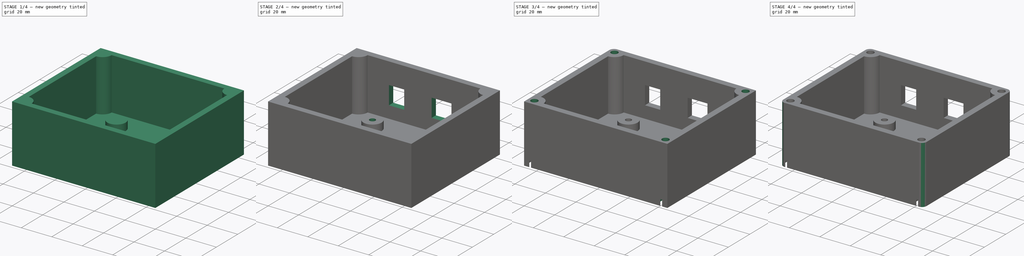
[diagram: build sequence overview — one tinted view per stage of 4, left to right]
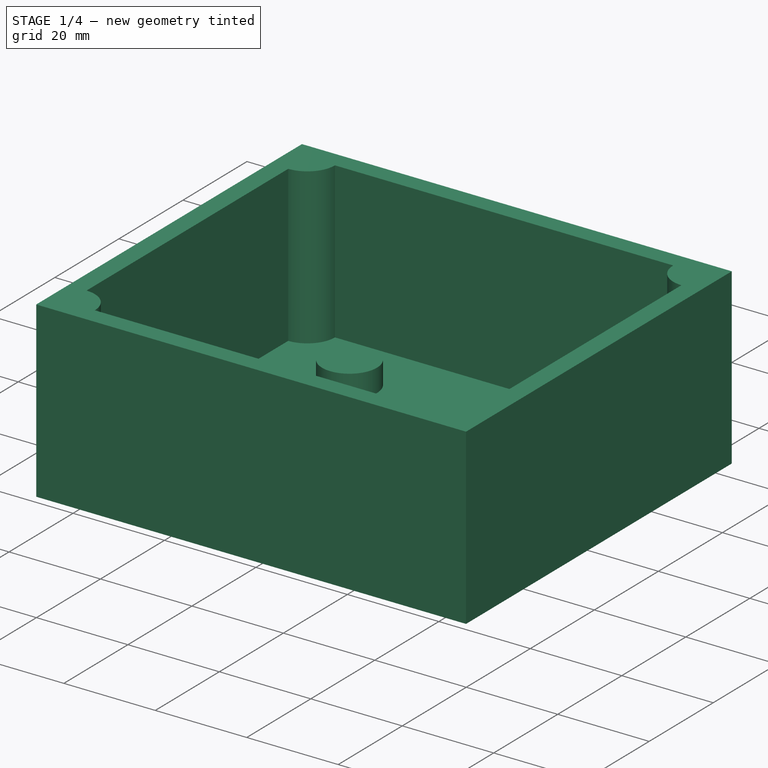
[diagram: stage 1 of 4 — iso view after this stage's code; geometry added in this stage tinted green]
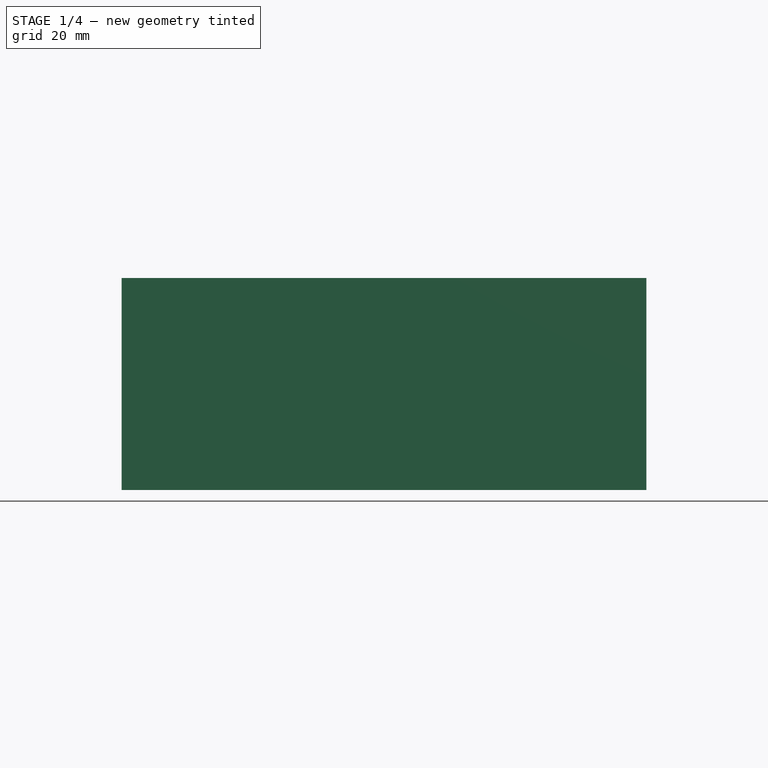
[diagram: stage 1 of 4 — front view after this stage's code; geometry added in this stage tinted green]
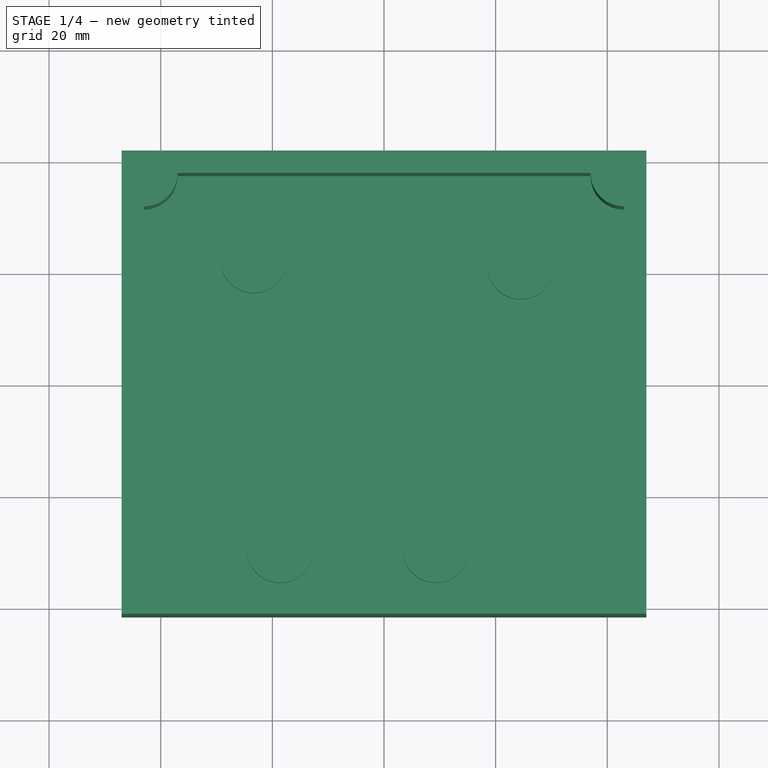
[diagram: stage 1 of 4 — top view after this stage's code; geometry added in this stage tinted green]
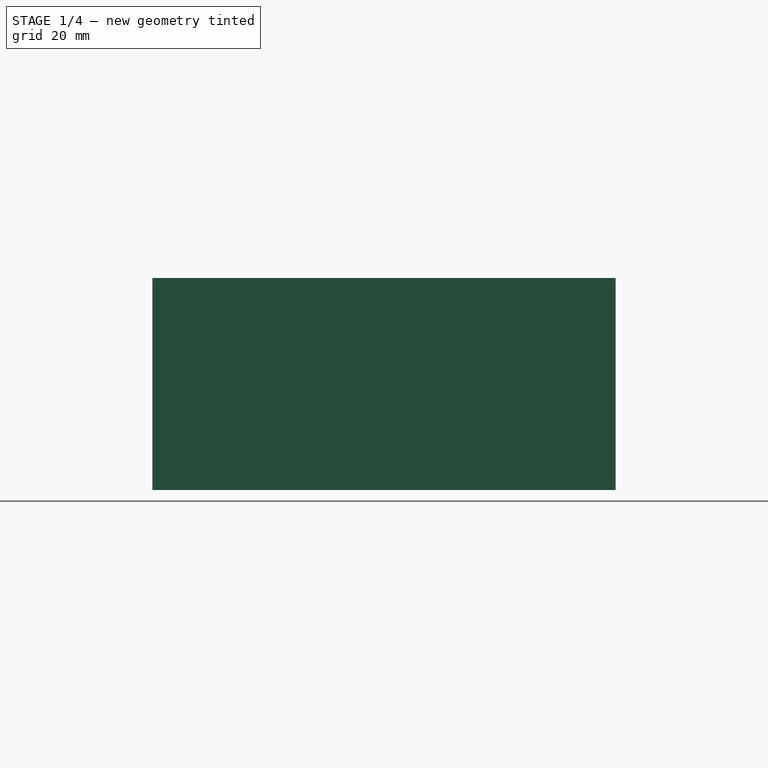
[diagram: stage 1 of 4 — right view after this stage's code; geometry added in this stage tinted green]
FCSTD DOCUMENT  (FreeCAD 0.19R)
Label: lamp_case
License: All rights reserved
LicenseURL: http://en.wikipedia.org/wiki/All_rights_reserved
objects: Sketcher::SketchObject×8, PartDesign::Pocket×6, PartDesign::Fillet×4, PartDesign::Pad×2, PartDesign::Body×1
note: 33 computed .brp shape members not serialized (recipe doc carries the construction recipe); baked Part::Feature solids carry a one-line shape summary decoded from their .brp

FEATURE [Sketcher::SketchObject] Sketch
  FullyConstrained = true
  MapMode = 5
  Support = -> [XY_Plane]
  sketch-geometry (4):
    g0: LineSegment StartX=-47 StartY=41.5 StartZ=0 EndX=47 EndY=41.5 EndZ=0
    g1: LineSegment StartX=47 StartY=41.5 StartZ=0 EndX=47 EndY=-41.5 EndZ=0
    g2: LineSegment StartX=47 StartY=-41.5 StartZ=0 EndX=-47 EndY=-41.5 EndZ=0
    g3: LineSegment StartX=-47 StartY=-41.5 StartZ=0 EndX=-47 EndY=41.5 EndZ=0
  constraints (10):
    c: Coincident(g0,g1)
    c: Coincident(g1,g2)
    c: Coincident(g2,g3)
    c: Coincident(g3,g0)
    c: Horizontal(g0)
    c: Vertical(g3)
    c: DistanceX(g0,g0) = 94
    c: DistanceY(g1,g0) = 83
    c: Symmetric(g1,g2,g-2)
    c: Symmetric(g0,g1,g-1)
FEATURE [PartDesign::Pad] Pad
  Direction = (1,1,1)
  Length = 38
  Length2 = 100
  Profile = -> Sketch
  Type = 0
FEATURE [Sketcher::SketchObject] Sketch001
  FullyConstrained = true
  MapMode = 5
  Placement = pos=(0,0,38) rot=(0,0,1;0rad)
  Support = -> [Pad]
  sketch-geometry (8):
    g0: LineSegment StartX=-37 StartY=37.5 StartZ=0 EndX=37 EndY=37.5 EndZ=0
    g1: LineSegment StartX=43 StartY=31.5 StartZ=0 EndX=43 EndY=-31.5 EndZ=0
    g2: LineSegment StartX=37 StartY=-37.5 StartZ=0 EndX=-37 EndY=-37.5 EndZ=0
    g3: LineSegment StartX=-43 StartY=-31.5 StartZ=0 EndX=-43 EndY=31.5 EndZ=0
    g4: ArcOfCircle CenterX=-43 CenterY=37.5 CenterZ=0 NormalX=0 NormalY=0 NormalZ=1 AngleXU=0 Radius=6 StartAngle=4.71239 EndAngle=6.28319
    g5: ArcOfCircle CenterX=43 CenterY=37.5 CenterZ=0 NormalX=0 NormalY=0 NormalZ=1 AngleXU=0 Radius=6 StartAngle=3.14159 EndAngle=4.71239
    g6: ArcOfCircle CenterX=43 CenterY=-37.5 CenterZ=0 NormalX=0 NormalY=0 NormalZ=1 AngleXU=0 Radius=6 StartAngle=1.5708 EndAngle=3.14159
    g7: ArcOfCircle CenterX=-43 CenterY=-37.5 CenterZ=0 NormalX=0 NormalY=0 NormalZ=1 AngleXU=0 Radius=6 StartAngle=0 EndAngle=1.5708
  constraints (24):
    c: Horizontal(g2)
    c: Vertical(g1)
    c: Coincident(g4,g3)
    c: Coincident(g4,g0)
    c: Coincident(g5,g1)
    c: Coincident(g6,g1)
    c: Coincident(g7,g3)
    c: Coincident(g7,g2)
    c: DistanceX(g7,g6) = 86
    c: Symmetric(g7,g6,g-2)
    c: Vertical(g3)
    c: Horizontal(g0)
    c: Symmetric(g5,g4,g-2)
    c: Equal(g5,g4)
    c: Radius(g6) = 6
    c: Symmetric(g3,g1,g-2)
    c: Coincident(g5,g0)
    c: DistanceY(g2,g0) = 75
    c: Symmetric(g0,g6,g-1)
    c: Radius(g5) = 6
    c: DistanceY(g5,g0) = 0
    c: DistanceX(g1,g5) = 0
    c: Coincident(g6,g2)
    c: DistanceY(g2,g6) = 0
FEATURE [PartDesign::Pocket] Pocket
  BaseFeature = -> Pad
  Length = 34
  Length2 = 100
  Profile = -> Sketch001
  Type = 0
FEATURE [Sketcher::SketchObject] Sketch002
  ExternalGeometry = -> [Pocket]
  FullyConstrained = true
  MapMode = 5
  Placement = pos=(0,0,4) rot=(0,0,1;0rad)
  Support = -> [Pocket]
  sketch-geometry (4):
    g0: Circle CenterX=-23.3 CenterY=22.5 CenterZ=0 NormalX=0 NormalY=0 NormalZ=1 AngleXU=0 Radius=6
    g1: Circle CenterX=24.5 CenterY=21.4 CenterZ=0 NormalX=0 NormalY=0 NormalZ=1 AngleXU=0 Radius=6
    g2: Circle CenterX=-18.6 CenterY=-29.4 CenterZ=0 NormalX=0 NormalY=0 NormalZ=1 AngleXU=0 Radius=6
    g3: Circle CenterX=9.3 CenterY=-29.4 CenterZ=0 NormalX=0 NormalY=0 NormalZ=1 AngleXU=0 Radius=6
  constraints (12):
    c: DistanceY(g0,g-3) = 15
    c: DistanceY(g1,g-3) = 16.1
    c: DistanceX(g1,g-3) = 12.5
    c: DistanceX(g0,g1) = 47.8
    c: DistanceX(g3,g1) = 15.2
    c: DistanceX(g0,g2) = 4.7
    c: DistanceY(g2,g0) = 51.9
    c: DistanceY(g3,g1) = 50.8
    c: Equal(g0,g2)
    c: Equal(g2,g3)
    c: Equal(g3,g1)
    c: Diameter(g1) = 12
FEATURE [PartDesign::Pad] Pad001
  BaseFeature = -> Pocket
  Direction = (1,1,1)
  Length = 5
  Length2 = 100
  Profile = -> Sketch002
  Type = 0
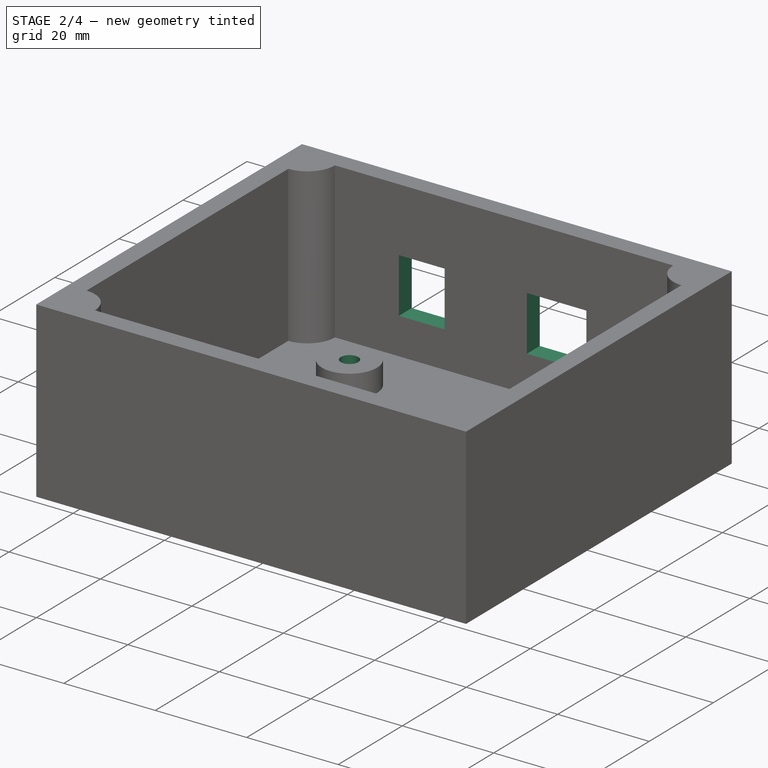
[diagram: stage 2 of 4 — iso view after this stage's code; geometry added in this stage tinted green]
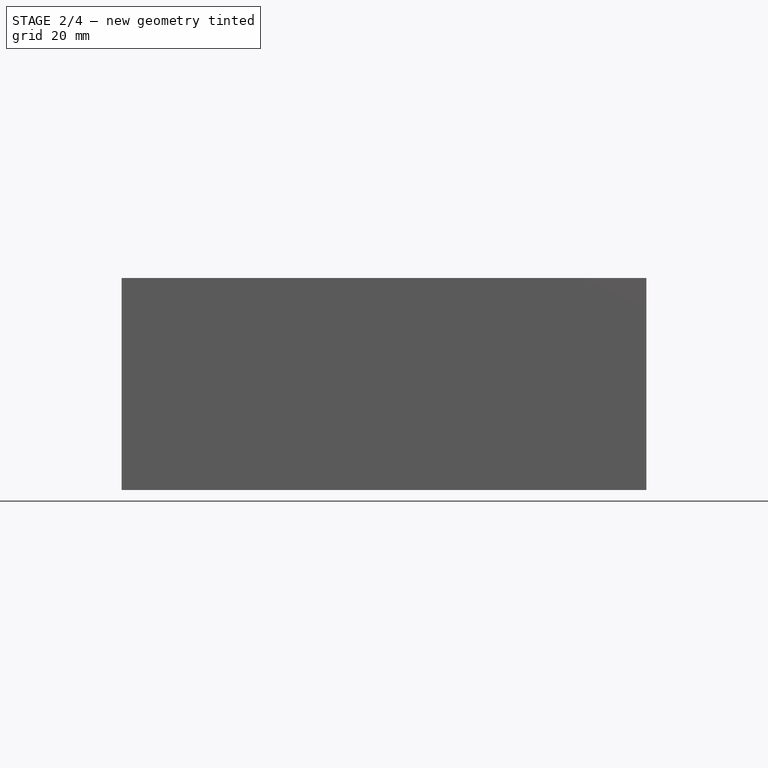
[diagram: stage 2 of 4 — front view after this stage's code; geometry added in this stage tinted green]
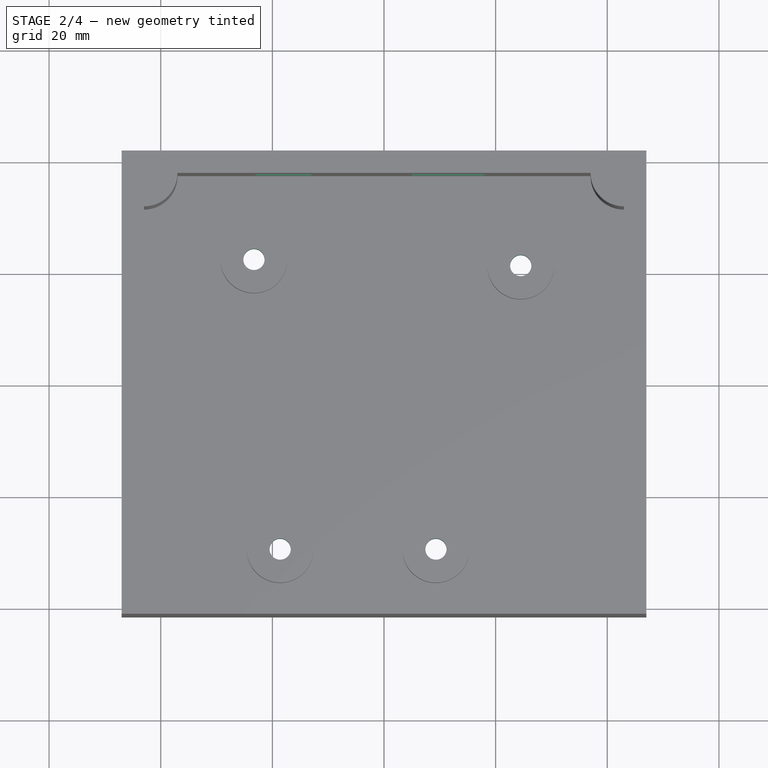
[diagram: stage 2 of 4 — top view after this stage's code; geometry added in this stage tinted green]
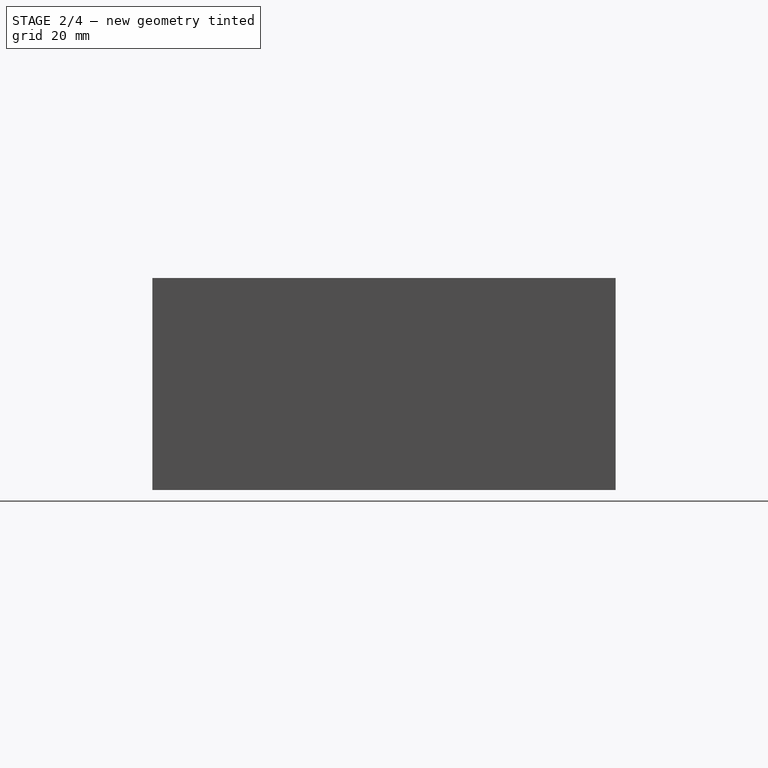
[diagram: stage 2 of 4 — right view after this stage's code; geometry added in this stage tinted green]
FEATURE [Sketcher::SketchObject] Sketch004
  FullyConstrained = true
  MapMode = 5
  Placement = pos=(0,41.5,0) rot=(0,0.707107,0.707107;3.14159rad)
  sketch-geometry (8):
    g0: LineSegment StartX=-18 StartY=24 StartZ=0 EndX=-5 EndY=24 EndZ=0
    g1: LineSegment StartX=-5 StartY=24 StartZ=0 EndX=-5 EndY=12 EndZ=0
    g2: LineSegment StartX=-5 StartY=12 StartZ=0 EndX=-18 EndY=12 EndZ=0
    g3: LineSegment StartX=-18 StartY=12 StartZ=0 EndX=-18 EndY=24 EndZ=0
    g4: LineSegment StartX=13 StartY=24 StartZ=0 EndX=23 EndY=24 EndZ=0
    g5: LineSegment StartX=23 StartY=24 StartZ=0 EndX=23 EndY=12 EndZ=0
    g6: LineSegment StartX=23 StartY=12 StartZ=0 EndX=13 EndY=12 EndZ=0
    g7: LineSegment StartX=13 StartY=12 StartZ=0 EndX=13 EndY=24 EndZ=0
  constraints (24):
    c: Coincident(g0,g1)
    c: Coincident(g1,g2)
    c: Coincident(g2,g3)
    c: Coincident(g3,g0)
    c: Horizontal(g0)
    c: Horizontal(g2)
    c: Vertical(g1)
    c: Vertical(g3)
    c: DistanceX(g0,g0) = 13
    c: DistanceY(g1,g0) = 12
    c: Horizontal(g4)
    c: Horizontal(g6)
    c: Vertical(g5)
    c: Vertical(g7)
    c: DistanceX(g4,g4) = 10
    c: DistanceY(g6,g4) = 12
    c: DistanceX(g1,g6) = 18
    c: DistanceX(g1,g-1) = 5
    c: DistanceY(g-1,g1) = 12
    c: Coincident(g6,g5)
    c: Coincident(g7,g6)
    c: Coincident(g7,g4)
    c: Coincident(g4,g5)
    c: DistanceY(g-1,g6) = 12
FEATURE [PartDesign::Pocket] Pocket001
  BaseFeature = -> Pad001
  Length = 5
  Length2 = 100
  Profile = -> Sketch004
  Type = 0
FEATURE [Sketcher::SketchObject] Sketch005
  ExternalGeometry = -> [Pocket001]
  FullyConstrained = true
  MapMode = 5
  Placement = pos=(0,0,9) rot=(0,0,1;0rad)
  Support = -> [Pocket001]
  sketch-geometry (4):
    g0: Circle CenterX=-23.3 CenterY=22.5 CenterZ=0 NormalX=0 NormalY=0 NormalZ=1 AngleXU=0 Radius=1.9
    g1: Circle CenterX=24.5 CenterY=21.4 CenterZ=0 NormalX=0 NormalY=0 NormalZ=1 AngleXU=0 Radius=1.9
    g2: Circle CenterX=-18.6 CenterY=-29.4 CenterZ=0 NormalX=0 NormalY=0 NormalZ=1 AngleXU=0 Radius=1.9
    g3: Circle CenterX=9.3 CenterY=-29.4 CenterZ=0 NormalX=0 NormalY=0 NormalZ=1 AngleXU=0 Radius=1.9
  constraints (8):
    c: Coincident(g-5,g3)
    c: Coincident(g1,g-4)
    c: Coincident(g2,g-6)
    c: Coincident(g-3,g0)
    c: Equal(g1,g2)
    c: Equal(g2,g0)
    c: Equal(g0,g3)
    c: Diameter(g1) = 3.8
FEATURE [PartDesign::Pocket] Pocket002
  BaseFeature = -> Pocket001
  Length = 5
  Length2 = 100
  Profile = -> Sketch005
  Type = 1
FEATURE [Sketcher::SketchObject] Sketch006
  ExternalGeometry = -> [Pocket002]
  FullyConstrained = true
  MapMode = 5
  Placement = pos=(0,0,0) rot=(1,0,0;3.14159rad)
  Support = -> [Pocket002]
  sketch-geometry (28):
    g0: LineSegment StartX=-15.75 StartY=27.7546 StartZ=0 EndX=-15.75 EndY=31.0454 EndZ=0
    g1: LineSegment StartX=-15.75 StartY=31.0454 StartZ=0 EndX=-18.6 EndY=32.6909 EndZ=0
    g2: LineSegment StartX=-18.6 StartY=32.6909 StartZ=0 EndX=-21.45 EndY=31.0454 EndZ=0
    g3: LineSegment StartX=-21.45 StartY=31.0454 StartZ=0 EndX=-21.45 EndY=27.7546 EndZ=0
    g4: LineSegment StartX=-21.45 StartY=27.7546 StartZ=0 EndX=-18.6 EndY=26.1091 EndZ=0
    g5: LineSegment StartX=-18.6 StartY=26.1091 StartZ=0 EndX=-15.75 EndY=27.7546 EndZ=0
    g6: Circle CenterX=-18.6 CenterY=29.4 CenterZ=0 NormalX=0 NormalY=0 NormalZ=1 AngleXU=0 Radius=3.2909
    g7: LineSegment StartX=12.15 StartY=27.7546 StartZ=0 EndX=12.15 EndY=31.0454 EndZ=0
    g8: LineSegment StartX=12.15 StartY=31.0454 StartZ=0 EndX=9.3 EndY=32.6909 EndZ=0
    g9: LineSegment StartX=9.3 StartY=32.6909 StartZ=0 EndX=6.45 EndY=31.0454 EndZ=0
    g10: LineSegment StartX=6.45 StartY=31.0454 StartZ=0 EndX=6.45 EndY=27.7546 EndZ=0
    g11: LineSegment StartX=6.45 StartY=27.7546 StartZ=0 EndX=9.3 EndY=26.1091 EndZ=0
    g12: LineSegment StartX=9.3 StartY=26.1091 StartZ=0 EndX=12.15 EndY=27.7546 EndZ=0
    g13: Circle CenterX=9.3 CenterY=29.4 CenterZ=0 NormalX=0 NormalY=0 NormalZ=1 AngleXU=0 Radius=3.2909
    g14: LineSegment StartX=-20.45 StartY=-24.1454 StartZ=0 EndX=-20.45 EndY=-20.8546 EndZ=0
    g15: LineSegment StartX=-20.45 StartY=-20.8546 StartZ=0 EndX=-23.3 EndY=-19.2091 EndZ=0
    g16: LineSegment StartX=-23.3 StartY=-19.2091 StartZ=0 EndX=-26.15 EndY=-20.8546 EndZ=0
    g17: LineSegment StartX=-26.15 StartY=-20.8546 StartZ=0 EndX=-26.15 EndY=-24.1454 EndZ=0
    g18: LineSegment StartX=-26.15 StartY=-24.1454 StartZ=0 EndX=-23.3 EndY=-25.7909 EndZ=0
    g19: LineSegment StartX=-23.3 StartY=-25.7909 StartZ=0 EndX=-20.45 EndY=-24.1454 EndZ=0
    g20: Circle CenterX=-23.3 CenterY=-22.5 CenterZ=0 NormalX=0 NormalY=0 NormalZ=1 AngleXU=0 Radius=3.2909
    g21: LineSegment StartX=27.35 StartY=-23.0454 StartZ=0 EndX=27.35 EndY=-19.7546 EndZ=0
    g22: LineSegment StartX=27.35 StartY=-19.7546 StartZ=0 EndX=24.5 EndY=-18.1091 EndZ=0
    g23: LineSegment StartX=24.5 StartY=-18.1091 StartZ=0 EndX=21.65 EndY=-19.7546 EndZ=0
    g24: LineSegment StartX=21.65 StartY=-19.7546 StartZ=0 EndX=21.65 EndY=-23.0454 EndZ=0
    g25: LineSegment StartX=21.65 StartY=-23.0454 StartZ=0 EndX=24.5 EndY=-24.6909 EndZ=0
    g26: LineSegment StartX=24.5 StartY=-24.6909 StartZ=0 EndX=27.35 EndY=-23.0454 EndZ=0
    g27: Circle CenterX=24.5 CenterY=-21.4 CenterZ=0 NormalX=0 NormalY=0 NormalZ=1 AngleXU=0 Radius=3.2909
  constraints (64):
    c: Coincident(g0,g1)
    c: Coincident(g1,g2)
    c: Coincident(g2,g3)
    c: Coincident(g3,g4)
    c: Coincident(g4,g5)
    c: Coincident(g5,g0)
    c: Equal(g0, g1-g5) x5
    c: PointOnObject(g0,g6)
    c: PointOnObject(g1,g6)
    c: PointOnObject(g2,g6)
    c: PointOnObject(g3,g6)
    c: PointOnObject(g4,g6)
    c: PointOnObject(g5,g6)
    c: Coincident(g7,g8)
    c: Coincident(g8,g9)
    c: Coincident(g9,g10)
    c: Coincident(g10,g11)
    c: Coincident(g11,g12)
    c: Coincident(g12,g7)
    c: Equal(g7, g8-g12) x5
    c: PointOnObject(g7,g13)
    c: PointOnObject(g8,g13)
    c: PointOnObject(g9,g13)
    c: PointOnObject(g10,g13)
    c: PointOnObject(g11,g13)
    c: PointOnObject(g12,g13)
    c: Coincident(g14,g15)
    c: Coincident(g15,g16)
    c: Coincident(g16,g17)
    c: Coincident(g17,g18)
    c: Coincident(g18,g19)
    c: Coincident(g19,g14)
    c: Equal(g14, g15-g19) x5
    c: PointOnObject(g14,g20)
    c: PointOnObject(g15,g20)
    c: PointOnObject(g16,g20)
    c: PointOnObject(g17,g20)
    c: PointOnObject(g18,g20)
    c: PointOnObject(g19,g20)
    c: Coincident(g21,g22)
    c: Coincident(g22,g23)
    c: Coincident(g23,g24)
    c: Coincident(g24,g25)
    c: Coincident(g25,g26)
    c: Coincident(g26,g21)
    c: Equal(g21, g22-g26) x5
    c: PointOnObject(g21,g27)
    c: PointOnObject(g22,g27)
    c: PointOnObject(g23,g27)
    c: PointOnObject(g24,g27)
    c: PointOnObject(g25,g27)
    c: PointOnObject(g26,g27)
    c: Equal(g7,g0)
    c: Equal(g0,g14)
    c: Equal(g14,g21)
    c: Vertical(g21)
    c: Vertical(g14)
    c: Vertical(g0)
    c: Vertical(g7)
    c: DistanceX(g16,g14) = 5.7
    c: Coincident(g-3,g20)
    c: Coincident(g-6,g27)
    c: Coincident(g13,g-5)
    c: Coincident(g6,g-4)
FEATURE [PartDesign::Pocket] Pocket003
  BaseFeature = -> Pocket002
  Length = 4
  Length2 = 100
  Profile = -> Sketch006
  Type = 0
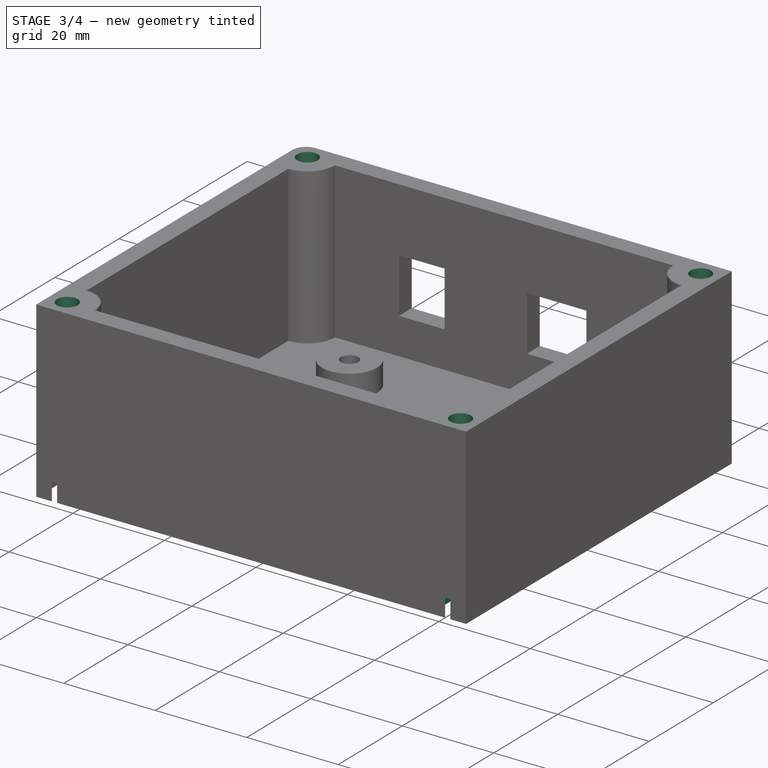
[diagram: stage 3 of 4 — iso view after this stage's code; geometry added in this stage tinted green]
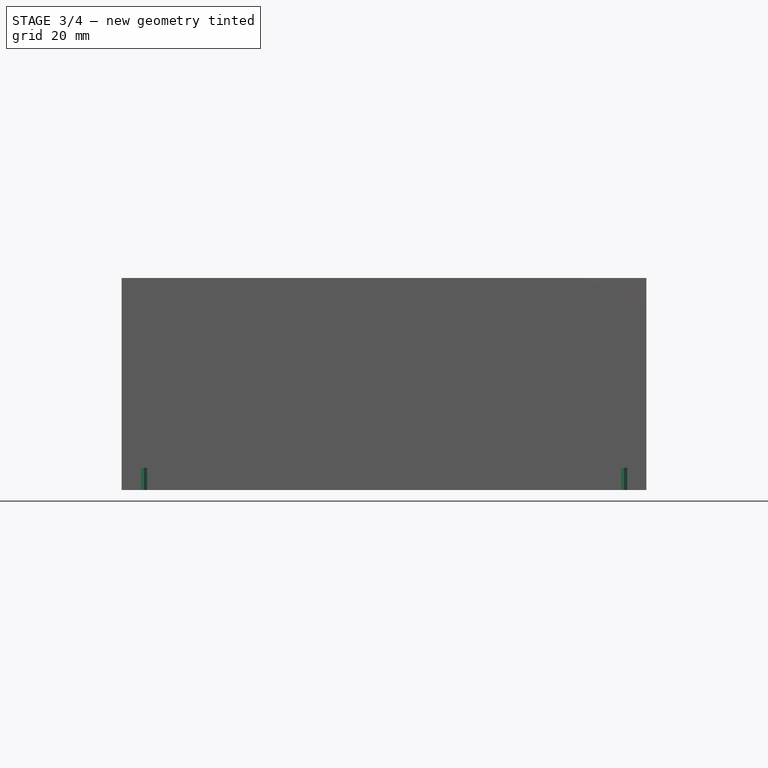
[diagram: stage 3 of 4 — front view after this stage's code; geometry added in this stage tinted green]
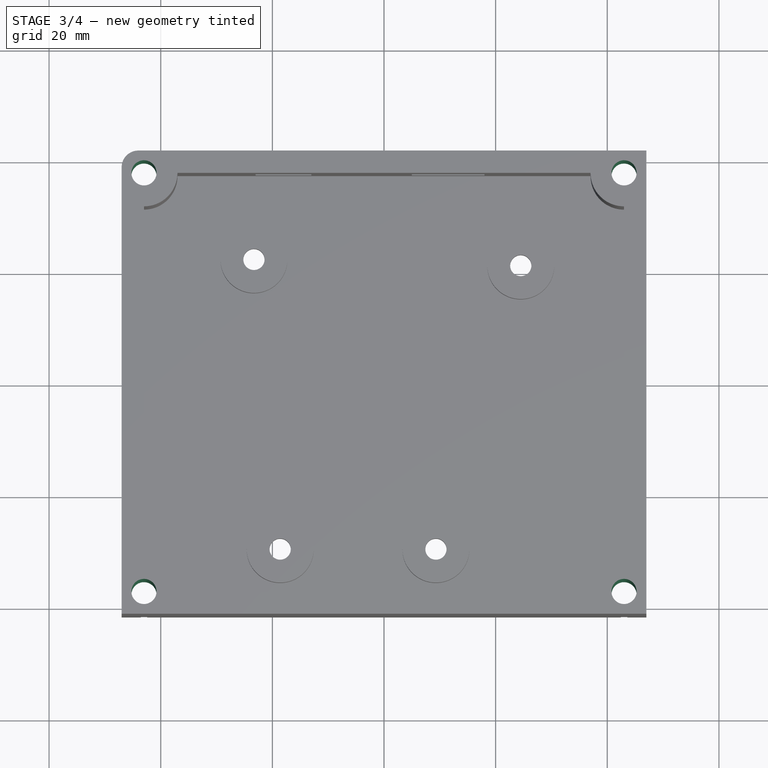
[diagram: stage 3 of 4 — top view after this stage's code; geometry added in this stage tinted green]
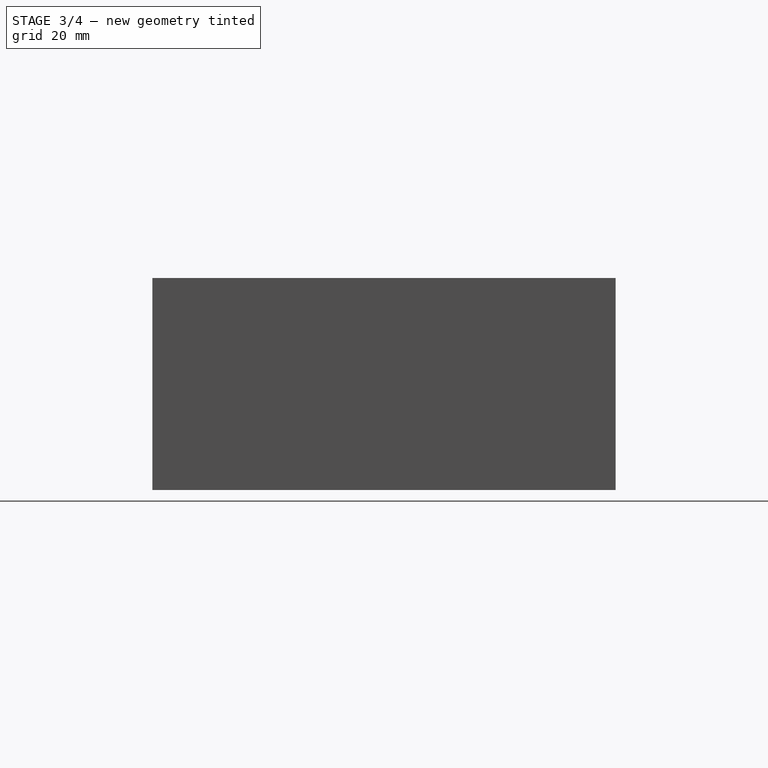
[diagram: stage 3 of 4 — right view after this stage's code; geometry added in this stage tinted green]
FEATURE [Sketcher::SketchObject] Sketch007
  ExternalGeometry = -> [Pocket003]
  FullyConstrained = true
  MapMode = 5
  Placement = pos=(0,0,38) rot=(0,0,1;0rad)
  Support = -> [Pocket003]
  sketch-geometry (4):
    g0: Circle CenterX=-43 CenterY=37.5 CenterZ=0 NormalX=0 NormalY=0 NormalZ=1 AngleXU=0 Radius=2.25
    g1: Circle CenterX=43 CenterY=37.5 CenterZ=0 NormalX=0 NormalY=0 NormalZ=1 AngleXU=0 Radius=2.25
    g2: Circle CenterX=43 CenterY=-37.5 CenterZ=0 NormalX=0 NormalY=0 NormalZ=1 AngleXU=0 Radius=2.25
    g3: Circle CenterX=-43 CenterY=-37.5 CenterZ=0 NormalX=0 NormalY=0 NormalZ=1 AngleXU=0 Radius=2.25
  constraints (8):
    c: Equal(g0,g1)
    c: Equal(g1,g2)
    c: Equal(g2,g3)
    c: Diameter(g1) = 4.5
    c: Coincident(g1,g-4)
    c: Coincident(g0,g-3)
    c: Coincident(g3,g-6)
    c: Coincident(g2,g-5)
FEATURE [PartDesign::Pocket] Pocket004
  BaseFeature = -> Pocket003
  Length = 5
  Length2 = 100
  Profile = -> Sketch007
  Type = 1
FEATURE [Sketcher::SketchObject] Sketch008
  ExternalGeometry = -> [Pocket004]
  FullyConstrained = true
  MapMode = 5
  Placement = pos=(0,0,0) rot=(1,0,0;3.14159rad)
  Support = -> [Pocket004]
  sketch-geometry (28):
    g0: LineSegment StartX=-43 StartY=-41.8301 StartZ=0 EndX=-39.25 EndY=-39.6651 EndZ=0
    g1: LineSegment StartX=-39.25 StartY=-39.6651 StartZ=0 EndX=-39.25 EndY=-35.3349 EndZ=0
    g2: LineSegment StartX=-39.25 StartY=-35.3349 StartZ=0 EndX=-43 EndY=-33.1699 EndZ=0
    g3: LineSegment StartX=-43 StartY=-33.1699 StartZ=0 EndX=-46.75 EndY=-35.3349 EndZ=0
    g4: LineSegment StartX=-46.75 StartY=-35.3349 StartZ=0 EndX=-46.75 EndY=-39.6651 EndZ=0
    g5: LineSegment StartX=-46.75 StartY=-39.6651 StartZ=0 EndX=-43 EndY=-41.8301 EndZ=0
    g6: Circle CenterX=-43 CenterY=-37.5 CenterZ=0 NormalX=0 NormalY=0 NormalZ=1 AngleXU=0 Radius=4.33013
    g7: LineSegment StartX=43 StartY=-41.8301 StartZ=0 EndX=46.75 EndY=-39.6651 EndZ=0
    g8: LineSegment StartX=46.75 StartY=-39.6651 StartZ=0 EndX=46.75 EndY=-35.3349 EndZ=0
    g9: LineSegment StartX=46.75 StartY=-35.3349 StartZ=0 EndX=43 EndY=-33.1699 EndZ=0
    g10: LineSegment StartX=43 StartY=-33.1699 StartZ=0 EndX=39.25 EndY=-35.3349 EndZ=0
    g11: LineSegment StartX=39.25 StartY=-35.3349 StartZ=0 EndX=39.25 EndY=-39.6651 EndZ=0
    g12: LineSegment StartX=39.25 StartY=-39.6651 StartZ=0 EndX=43 EndY=-41.8301 EndZ=0
    g13: Circle CenterX=43 CenterY=-37.5 CenterZ=0 NormalX=0 NormalY=0 NormalZ=1 AngleXU=0 Radius=4.33013
    g14: LineSegment StartX=-39.25 StartY=35.3349 StartZ=0 EndX=-39.25 EndY=39.6651 EndZ=0
    g15: LineSegment StartX=-39.25 StartY=39.6651 StartZ=0 EndX=-43 EndY=41.8301 EndZ=0
    g16: LineSegment StartX=-43 StartY=41.8301 StartZ=0 EndX=-46.75 EndY=39.6651 EndZ=0
    g17: LineSegment StartX=-46.75 StartY=39.6651 StartZ=0 EndX=-46.75 EndY=35.3349 EndZ=0
    g18: LineSegment StartX=-46.75 StartY=35.3349 StartZ=0 EndX=-43 EndY=33.1699 EndZ=0
    g19: LineSegment StartX=-43 StartY=33.1699 StartZ=0 EndX=-39.25 EndY=35.3349 EndZ=0
    g20: Circle CenterX=-43 CenterY=37.5 CenterZ=0 NormalX=0 NormalY=0 NormalZ=1 AngleXU=0 Radius=4.33013
    g21: LineSegment StartX=43 StartY=33.1699 StartZ=0 EndX=46.75 EndY=35.3349 EndZ=0
    g22: LineSegment StartX=46.75 StartY=35.3349 StartZ=0 EndX=46.75 EndY=39.6651 EndZ=0
    g23: LineSegment StartX=46.75 StartY=39.6651 StartZ=0 EndX=43 EndY=41.8301 EndZ=0
    g24: LineSegment StartX=43 StartY=41.8301 StartZ=0 EndX=39.25 EndY=39.6651 EndZ=0
    g25: LineSegment StartX=39.25 StartY=39.6651 StartZ=0 EndX=39.25 EndY=35.3349 EndZ=0
    g26: LineSegment StartX=39.25 StartY=35.3349 StartZ=0 EndX=43 EndY=33.1699 EndZ=0
    g27: Circle CenterX=43 CenterY=37.5 CenterZ=0 NormalX=0 NormalY=0 NormalZ=1 AngleXU=0 Radius=4.33013
  constraints (64):
    c: Coincident(g0,g1)
    c: Coincident(g1,g2)
    c: Coincident(g2,g3)
    c: Coincident(g3,g4)
    c: Coincident(g4,g5)
    c: Coincident(g5,g0)
    c: Equal(g0, g1-g5) x5
    c: PointOnObject(g0,g6)
    c: PointOnObject(g1,g6)
    c: PointOnObject(g2,g6)
    c: PointOnObject(g3,g6)
    c: PointOnObject(g4,g6)
    c: PointOnObject(g5,g6)
    c: Coincident(g7,g8)
    c: Coincident(g8,g9)
    c: Coincident(g9,g10)
    c: Coincident(g10,g11)
    c: Coincident(g11,g12)
    c: Coincident(g12,g7)
    c: Equal(g7, g8-g12) x5
    c: PointOnObject(g7,g13)
    c: PointOnObject(g8,g13)
    c: PointOnObject(g9,g13)
    c: PointOnObject(g10,g13)
    c: PointOnObject(g11,g13)
    c: PointOnObject(g12,g13)
    c: Coincident(g14,g15)
    c: Coincident(g15,g16)
    c: Coincident(g16,g17)
    c: Coincident(g17,g18)
    c: Coincident(g18,g19)
    c: Coincident(g19,g14)
    c: Equal(g14, g15-g19) x5
    c: PointOnObject(g14,g20)
    c: PointOnObject(g15,g20)
    c: PointOnObject(g16,g20)
    c: PointOnObject(g17,g20)
    c: PointOnObject(g18,g20)
    c: PointOnObject(g19,g20)
    c: Coincident(g21,g22)
    c: Coincident(g22,g23)
    c: Coincident(g23,g24)
    c: Coincident(g24,g25)
    c: Coincident(g25,g26)
    c: Coincident(g26,g21)
    c: Equal(g21, g22-g26) x5
    c: PointOnObject(g21,g27)
    c: PointOnObject(g22,g27)
    c: PointOnObject(g23,g27)
    c: PointOnObject(g24,g27)
    c: PointOnObject(g25,g27)
    c: PointOnObject(g26,g27)
    c: Vertical(g22)
    c: Vertical(g1)
    c: Vertical(g8)
    c: Vertical(g14)
    c: DistanceX(g17,g14) = 7.5
    c: Equal(g14,g22)
    c: Equal(g22,g8)
    c: Equal(g8,g1)
    c: Coincident(g-3,g20)
    c: Coincident(g-6,g27)
    c: Coincident(g-5,g13)
    c: Coincident(g-4,g6)
FEATURE [PartDesign::Pocket] Pocket005
  BaseFeature = -> Pocket004
  Length = 4
  Length2 = 100
  Profile = -> Sketch008
  Type = 0
FEATURE [PartDesign::Fillet] Fillet
  Base = -> Pocket005 [Edge12]
  BaseFeature = -> Pocket005
  Radius = 3
  SupportTransform = false
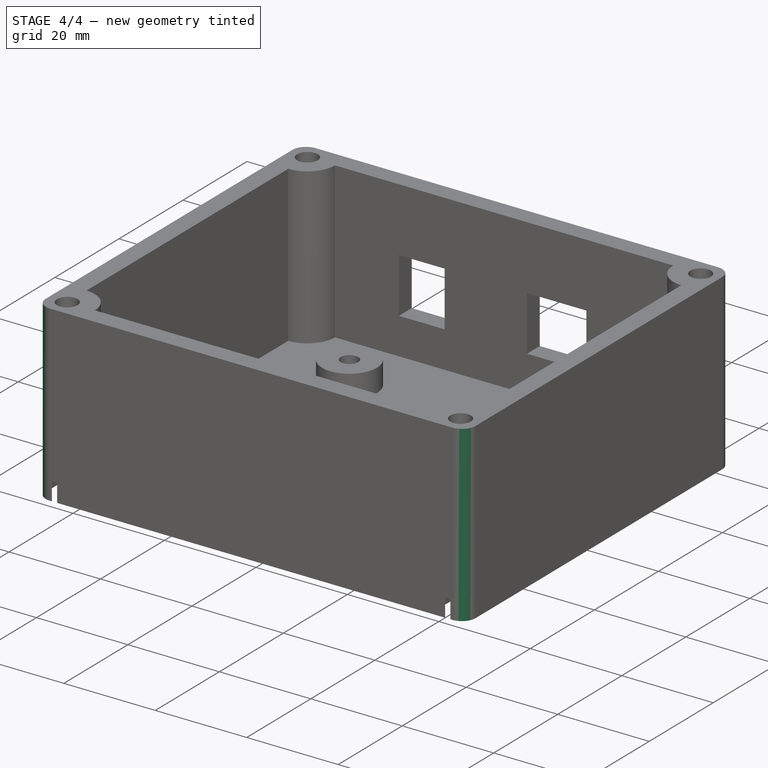
[diagram: stage 4 of 4 — iso view after this stage's code; geometry added in this stage tinted green]
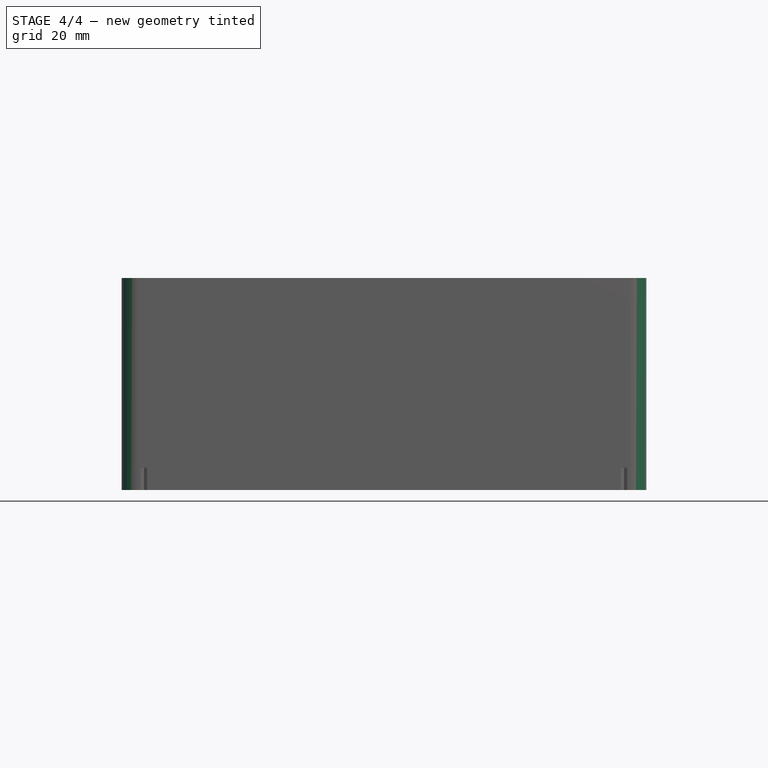
[diagram: stage 4 of 4 — front view after this stage's code; geometry added in this stage tinted green]
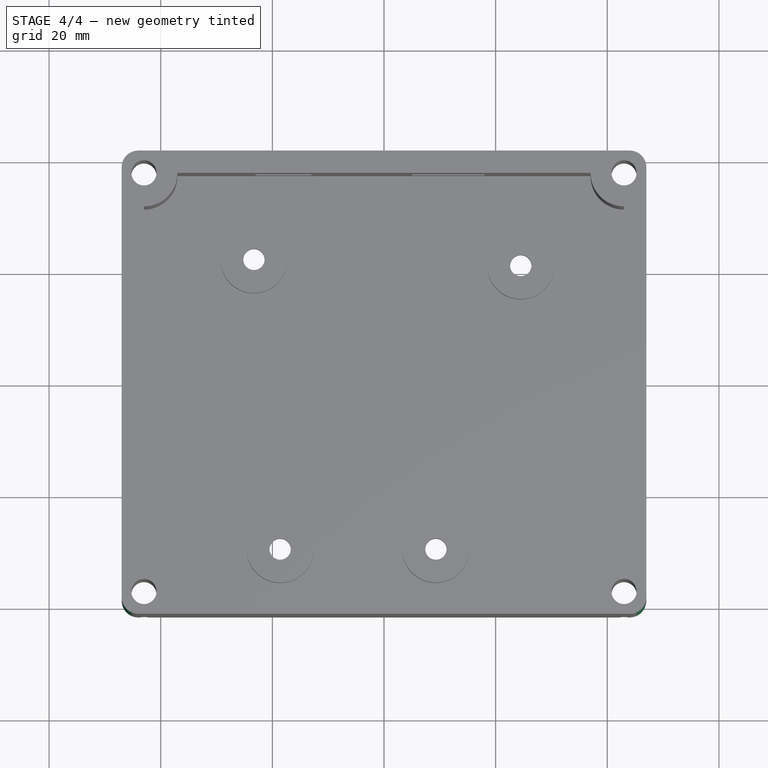
[diagram: stage 4 of 4 — top view after this stage's code; geometry added in this stage tinted green]
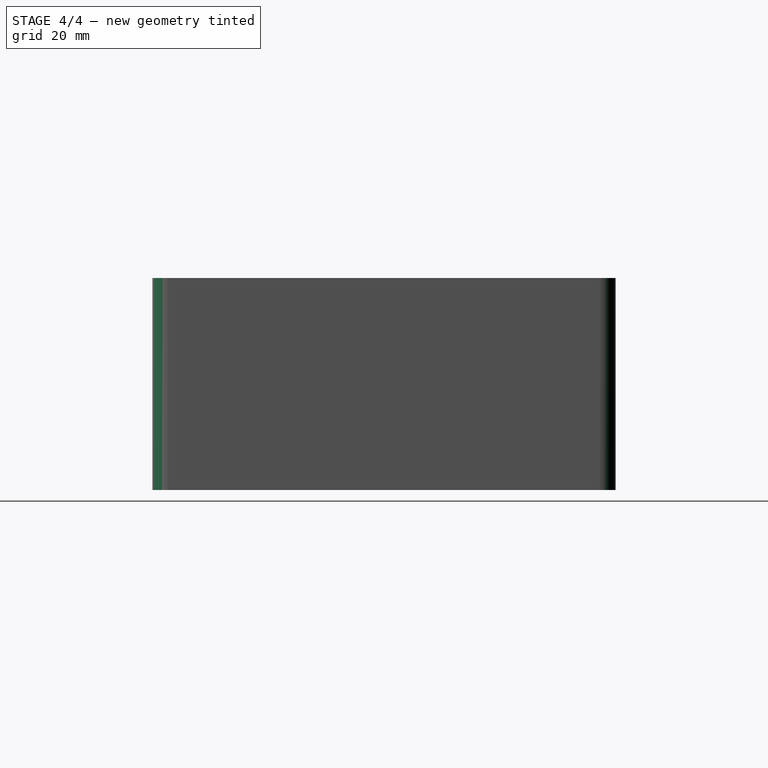
[diagram: stage 4 of 4 — right view after this stage's code; geometry added in this stage tinted green]
FEATURE [PartDesign::Fillet] Fillet001
  Base = -> Fillet [Edge127]
  BaseFeature = -> Fillet
  Radius = 3
  SupportTransform = false
FEATURE [PartDesign::Fillet] Fillet002
  Base = -> Fillet001 [Edge69]
  BaseFeature = -> Fillet001
  Radius = 3
  SupportTransform = false
FEATURE [PartDesign::Fillet] Fillet003
  Base = -> Fillet002 [Edge73]
  BaseFeature = -> Fillet002
  Radius = 3
  SupportTransform = false
FEATURE [PartDesign::Body] Body
  Group = -> [Sketch,Pad,Sketch001,Pocket,Sketch002,Pad001,Sketch004,Pocket001,Sketch005,Pocket002,Sketch006,Pocket003,Sketch007,Pocket004,Sketch008,Pocket005,Fillet,Fillet001,Fillet002,Fillet003]
  Origin = -> Origin
  Tip = -> Fillet003
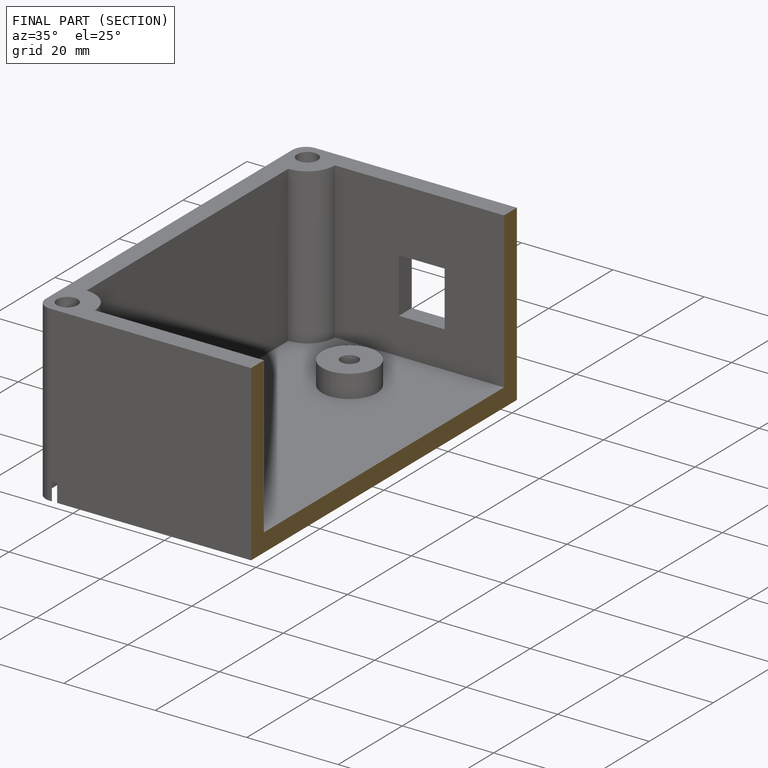
[diagram: finished part — half-section view (interior)]
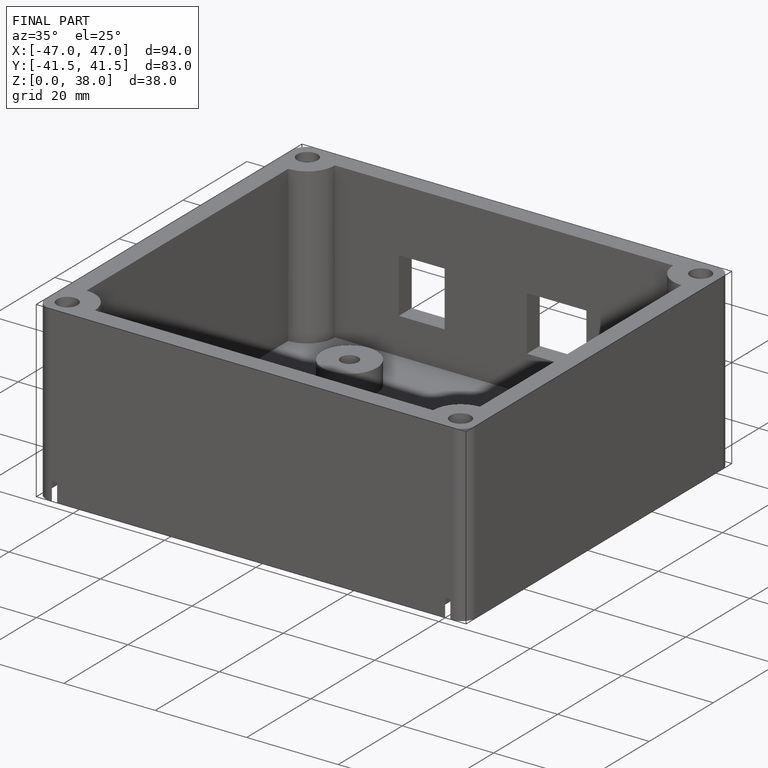
[diagram: finished part — iso view with bounding-box wireframe]
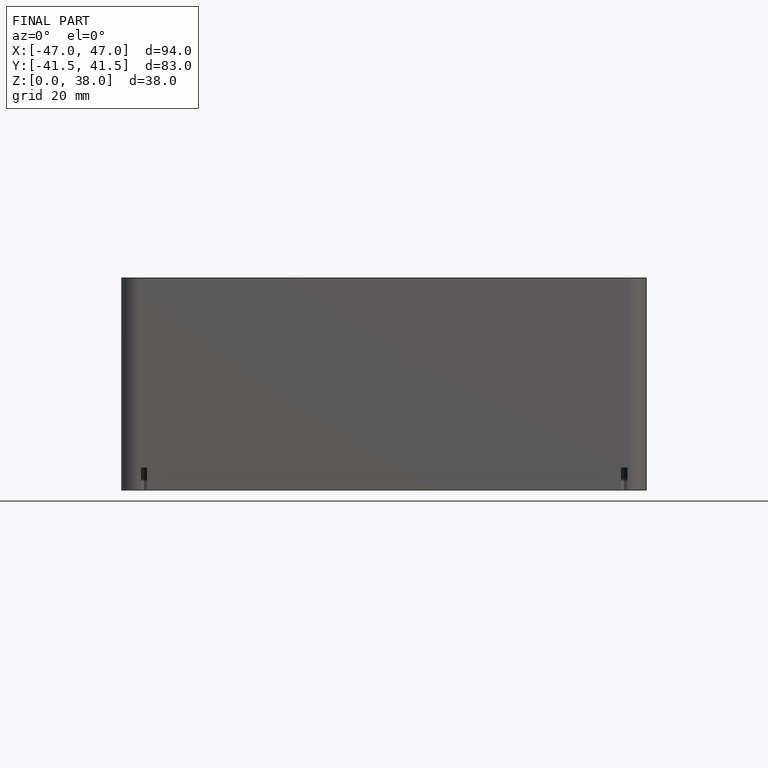
[diagram: finished part — front view with bounding-box wireframe]
